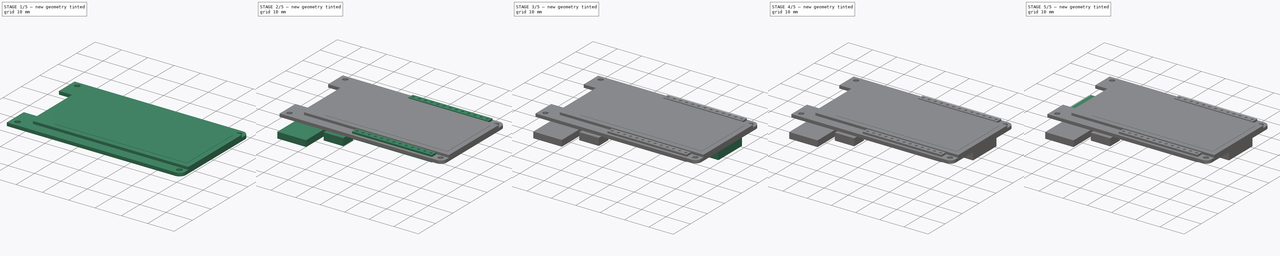
[diagram: build sequence overview — one tinted view per stage of 5, left to right]
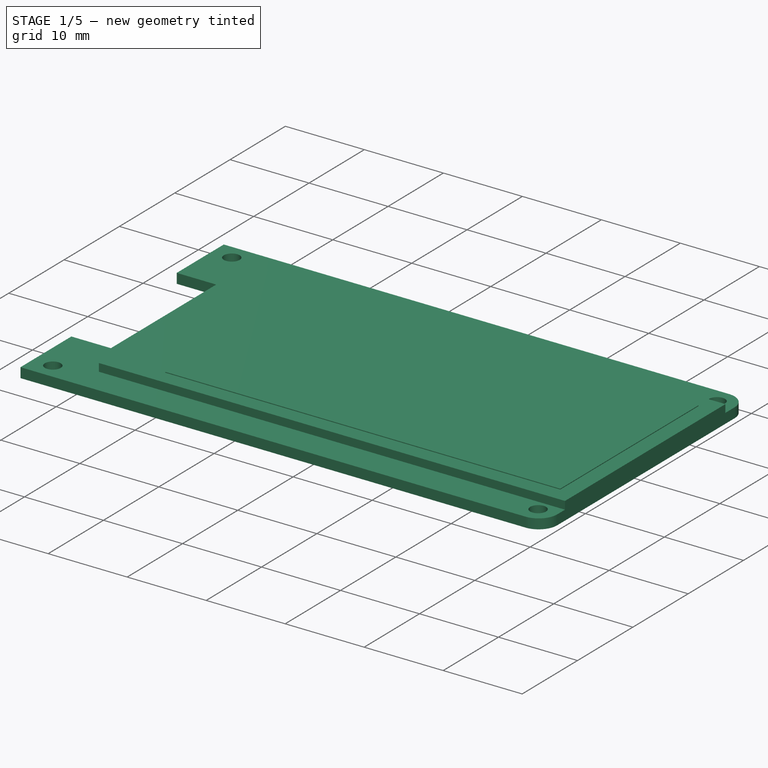
[diagram: stage 1 of 5 — iso view after this stage's code; geometry added in this stage tinted green]
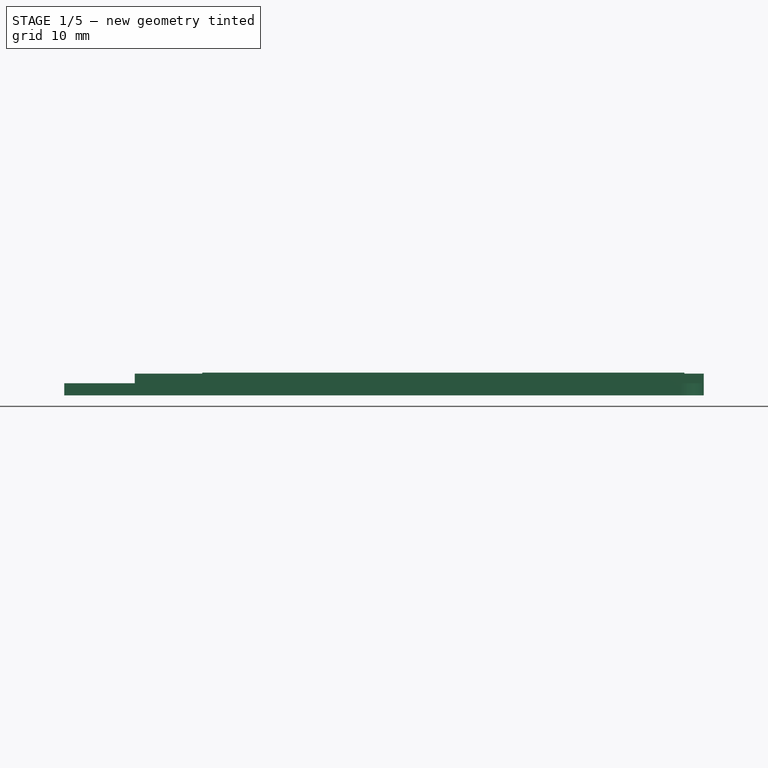
[diagram: stage 1 of 5 — front view after this stage's code; geometry added in this stage tinted green]
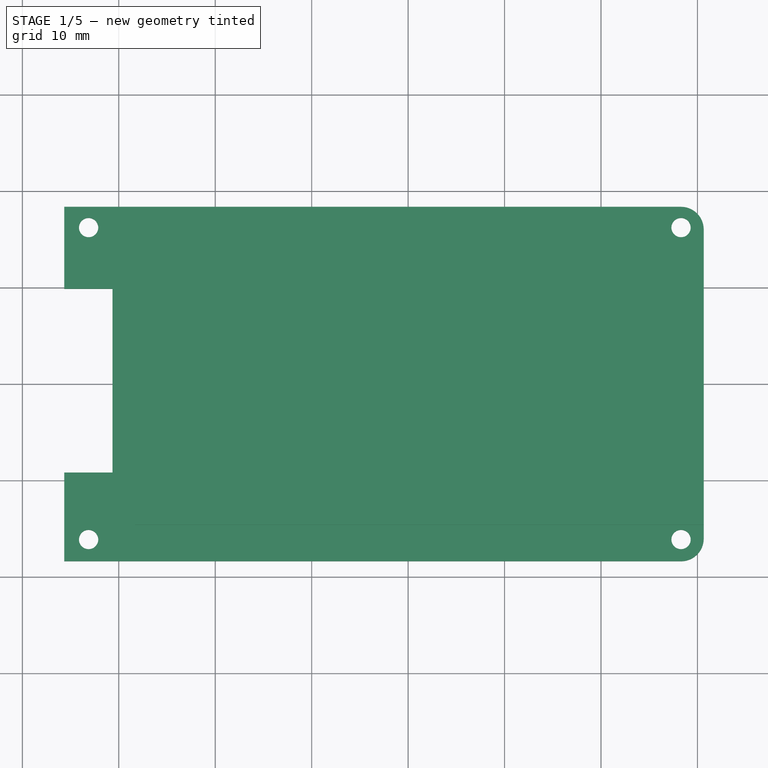
[diagram: stage 1 of 5 — top view after this stage's code; geometry added in this stage tinted green]
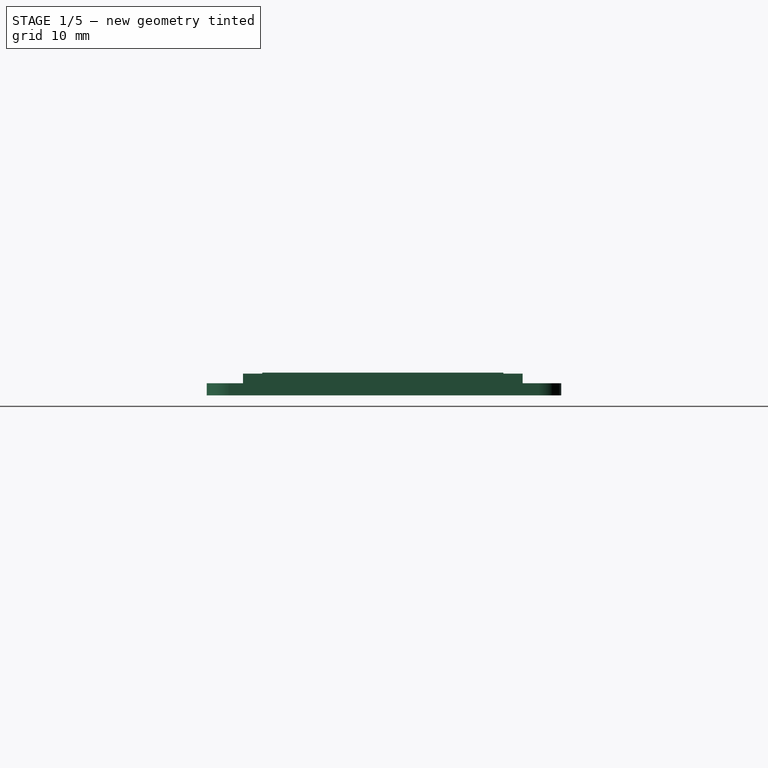
[diagram: stage 1 of 5 — right view after this stage's code; geometry added in this stage tinted green]
FCSTD DOCUMENT  (FreeCAD 0.21R33771 (Git))
Label: Mainboard
License: Creative Commons Attribution-NonCommercial 4.0
LicenseURL: https://creativecommons.org/licenses/by-nc/4.0/
objects: Sketcher::SketchObject×15, PartDesign::Pad×14, PartDesign::Pocket×1, PartDesign::Body×1
note: 46 computed .brp shape members not serialized (recipe doc carries the construction recipe); baked Part::Feature solids carry a one-line shape summary decoded from their .brp

FEATURE [Sketcher::SketchObject] Sketch
  FullyConstrained = true
  MapMode = 5
  Support = -> [XY_Plane]
  sketch-geometry (18):
    g0: LineSegment StartX=-35.65 StartY=18.375 StartZ=0 EndX=28.3 EndY=18.375 EndZ=0
    g1: LineSegment StartX=30.65 StartY=16.025 StartZ=0 EndX=30.65 EndY=-16.025 EndZ=0
    g2: LineSegment StartX=28.3 StartY=-18.375 StartZ=0 EndX=-35.65 EndY=-18.375 EndZ=0
    g3: LineSegment StartX=-35.65 StartY=-18.375 StartZ=0 EndX=-35.65 EndY=-9.175 EndZ=0
    g4: LineSegment StartX=-35.65 StartY=9.875 StartZ=0 EndX=-30.65 EndY=9.875 EndZ=0
    g5: LineSegment StartX=-30.65 StartY=9.875 StartZ=0 EndX=-30.65 EndY=-9.175 EndZ=0
    g6: LineSegment StartX=-30.65 StartY=-9.175 StartZ=0 EndX=-35.65 EndY=-9.175 EndZ=0
    g7: LineSegment StartX=-35.65 StartY=9.875 StartZ=0 EndX=-35.65 EndY=18.375 EndZ=0
    g8: Circle CenterX=-33.13 CenterY=16.225 CenterZ=0 NormalX=0 NormalY=0 NormalZ=1 AngleXU=0 Radius=1
    g9: Circle CenterX=-33.13 CenterY=-16.125 CenterZ=0 NormalX=0 NormalY=0 NormalZ=1 AngleXU=0 Radius=1
    g10: Circle CenterX=28.3 CenterY=16.225 CenterZ=0 NormalX=0 NormalY=0 NormalZ=1 AngleXU=0 Radius=1
    g11: Circle CenterX=28.3 CenterY=-16.125 CenterZ=0 NormalX=0 NormalY=0 NormalZ=1 AngleXU=0 Radius=1
    g12: ArcOfCircle CenterX=28.3 CenterY=16.025 CenterZ=0 NormalX=0 NormalY=0 NormalZ=1 AngleXU=0 Radius=2.35 StartAngle=-9e-16 EndAngle=1.5708
    g13: ArcOfCircle CenterX=28.3 CenterY=-16.025 CenterZ=0 NormalX=0 NormalY=0 NormalZ=1 AngleXU=0 Radius=2.35 StartAngle=4.71239 EndAngle=6.28319
    g14: GeomPoint X=0 Y=18.375 Z=0
    g15: GeomPoint X=-30.65 Y=0 Z=0
    g16: GeomPoint X=30.65 Y=0 Z=0
    g17: GeomPoint X=0 Y=-18.375 Z=0
  constraints (46):
    c: Coincident(g2,g3)
    c: Coincident(g7,g0)
    c: Horizontal(g0)
    c: Horizontal(g2)
    c: Vertical(g1)
    c: Vertical(g3)
    c: Coincident(g4,g5)
    c: Coincident(g5,g6)
    c: Horizontal(g4)
    c: Horizontal(g6)
    c: Vertical(g5)
    c: Vertical(g4,g0)
    c: DistanceY(g4,g0) = 8.5
    c: DistanceY(g2,g6) = 9.2
    c: DistanceX(g4,g4) = 5
    c: Coincident(g4,g7)
    c: Coincident(g3,g6)
    c: Equal(g4,g6)
    c: Diameter(g10) = 2
    c: Equal(g10,g11)
    c: Equal(g11,g9)
    c: Equal(g9,g8)
    c: DistanceY(g8,g0) = 2.15
    c: DistanceY(g2,g9) = 2.25
    c: Horizontal(g8,g10)
    c: Horizontal(g9,g11)
    c: Vertical(g10,g11)
    c: DistanceX(g0,g8) = 2.52
    c: Vertical(g8,g9)
    c: Tangent(g0,g12) = 1.5708
    c: Tangent(g1,g12) = 1.5708
    c: Tangent(g2,g13) = 1.5708
    c: Tangent(g1,g13) = 1.5708
    c: Equal(g12,g13)
    c: Radius(g12) = 2.35
    c: DistanceX(g0,g1) = 66.3
    c: DistanceY(g2,g0) = 36.75
    c: DistanceX(g10,g1) = 2.35
    c: PointOnObject(g14,g0)
    c: Vertical(g-1,g14)
    c: PointOnObject(g15,g5)
    c: PointOnObject(g16,g1)
    c: PointOnObject(g17,g2)
    c: Symmetric(g17,g14,g-1)
    c: Horizontal(g15,g-1)
    c: Symmetric(g15,g16,g-1)
FEATURE [PartDesign::Pad] Pad  label="PCB"
  Direction = (0,0,1)
  Length = 1.25
  Length2 = 10
  Profile = -> Sketch
  ReferenceAxis = -> Sketch [N_Axis]
  Type = 0
FEATURE [Sketcher::SketchObject] Sketch001
  ExternalGeometry = -> [Pad]
  FullyConstrained = true
  MapMode = 5
  Placement = pos=(0,0,1.25) rot=(0,0,1;0rad)
  Support = -> [Pad]
  sketch-geometry (4):
    g0: LineSegment StartX=-28.35 StartY=14.375 StartZ=0 EndX=30.65 EndY=14.375 EndZ=0
    g1: LineSegment StartX=30.65 StartY=14.375 StartZ=0 EndX=30.65 EndY=-14.625 EndZ=0
    g2: LineSegment StartX=30.65 StartY=-14.625 StartZ=0 EndX=-28.35 EndY=-14.625 EndZ=0
    g3: LineSegment StartX=-28.35 StartY=-14.625 StartZ=0 EndX=-28.35 EndY=14.375 EndZ=0
  constraints (12):
    c: Coincident(g0,g1)
    c: Coincident(g1,g2)
    c: Coincident(g2,g3)
    c: Coincident(g3,g0)
    c: Horizontal(g0)
    c: Horizontal(g2)
    c: Vertical(g1)
    c: Vertical(g3)
    c: Vertical(g0,g-3)
    c: DistanceX(g0,g0) = 59
    c: DistanceY(g1,g1) = 29
    c: DistanceY(g0,g-4) = 4
FEATURE [PartDesign::Pad] Pad001  label="Display"
  BaseFeature = -> Pad
  Direction = (0,0,1)
  Length = 1
  Length2 = 10
  Profile = -> Sketch001
  ReferenceAxis = -> Sketch001 [N_Axis]
  Type = 0
FEATURE [Sketcher::SketchObject] Sketch002
  ExternalGeometry = -> [Pad001]
  FullyConstrained = true
  MapMode = 5
  Placement = pos=(0,0,2.25) rot=(0,0,1;0rad)
  Support = -> [Pad001]
  sketch-geometry (4):
    g0: LineSegment StartX=-21.35 StartY=12.375 StartZ=0 EndX=28.65 EndY=12.375 EndZ=0
    g1: LineSegment StartX=28.65 StartY=12.375 StartZ=0 EndX=28.65 EndY=-12.625 EndZ=0
    g2: LineSegment StartX=28.65 StartY=-12.625 StartZ=0 EndX=-21.35 EndY=-12.625 EndZ=0
    g3: LineSegment StartX=-21.35 StartY=-12.625 StartZ=0 EndX=-21.35 EndY=12.375 EndZ=0
  constraints (12):
    c: Coincident(g0,g1)
    c: Coincident(g1,g2)
    c: Coincident(g2,g3)
    c: Coincident(g3,g0)
    c: Horizontal(g0)
    c: Horizontal(g2)
    c: Vertical(g1)
    c: Vertical(g3)
    c: DistanceY(g0,g-3) = 2
    c: DistanceY(g2,g0) = 25
    c: DistanceX(g1,g-4) = 2
    c: DistanceX(g2,g2) = 50
FEATURE [PartDesign::Pad] Pad002  label="Screen"
  BaseFeature = -> Pad001
  Direction = (0,0,1)
  Length = 0.1
  Length2 = 10
  Profile = -> Sketch002
  ReferenceAxis = -> Sketch002 [N_Axis]
  Type = 0
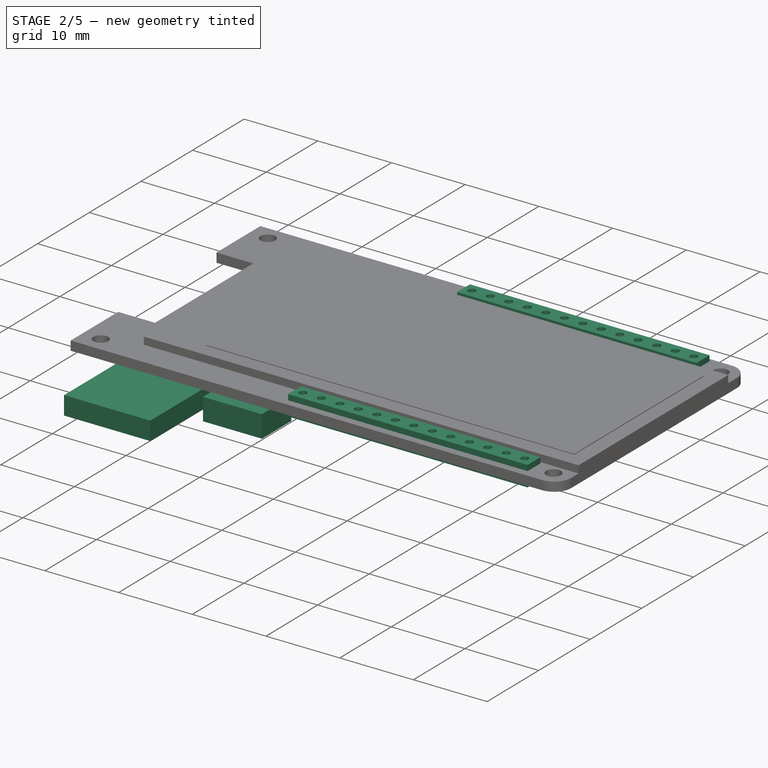
[diagram: stage 2 of 5 — iso view after this stage's code; geometry added in this stage tinted green]
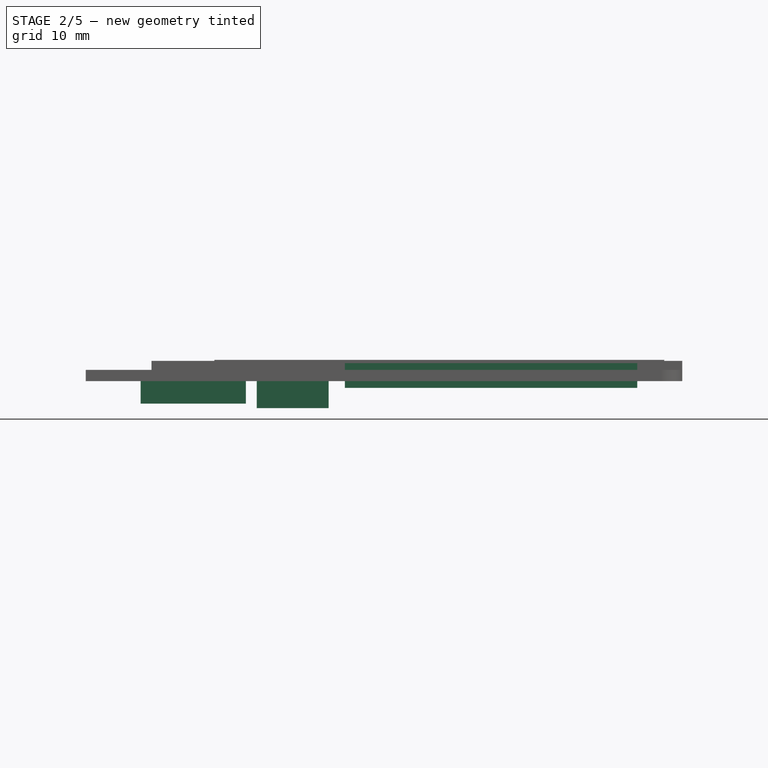
[diagram: stage 2 of 5 — front view after this stage's code; geometry added in this stage tinted green]
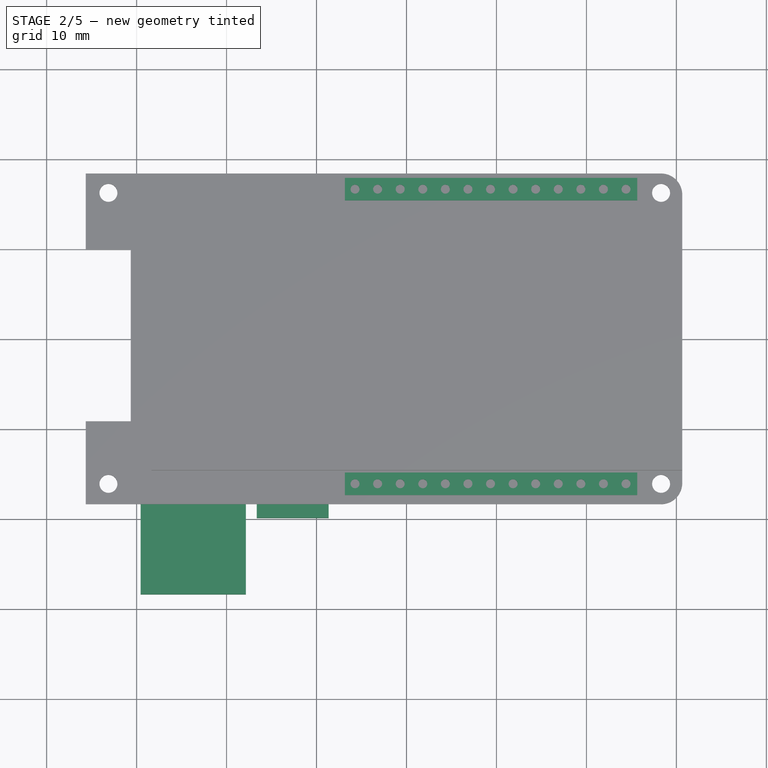
[diagram: stage 2 of 5 — top view after this stage's code; geometry added in this stage tinted green]
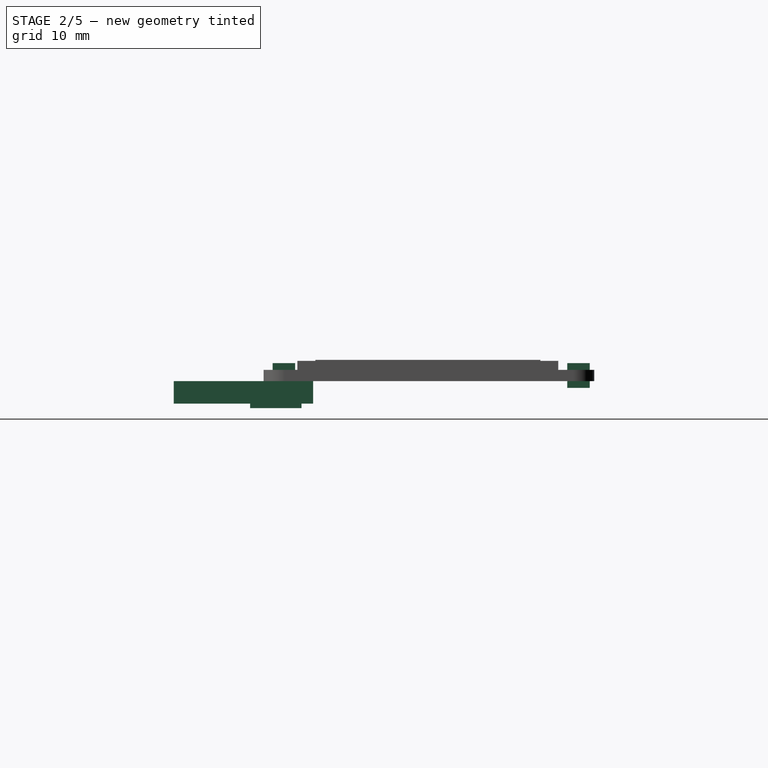
[diagram: stage 2 of 5 — right view after this stage's code; geometry added in this stage tinted green]
FEATURE [Sketcher::SketchObject] Sketch003
  ExternalGeometry = -> [Pad002]
  FullyConstrained = true
  MapMode = 5
  Placement = pos=(0,0,1.25) rot=(0,0,1;0rad)
  Support = -> [Pad002]
  sketch-geometry (60):
    g0: LineSegment StartX=25.65 StartY=17.875 StartZ=0 EndX=-6.85 EndY=17.875 EndZ=0
    g1: LineSegment StartX=-6.85 StartY=17.875 StartZ=0 EndX=-6.85 EndY=15.375 EndZ=0
    g2: LineSegment StartX=-6.85 StartY=15.375 StartZ=0 EndX=25.65 EndY=15.375 EndZ=0
    g3: LineSegment StartX=25.65 StartY=15.375 StartZ=0 EndX=25.65 EndY=17.875 EndZ=0
    g4: LineSegment StartX=25.65 StartY=-14.875 StartZ=0 EndX=-6.85 EndY=-14.875 EndZ=0
    g5: LineSegment StartX=-6.85 StartY=-14.875 StartZ=0 EndX=-6.85 EndY=-17.375 EndZ=0
    g6: LineSegment StartX=-6.85 StartY=-17.375 StartZ=0 EndX=25.65 EndY=-17.375 EndZ=0
    g7: LineSegment StartX=25.65 StartY=-17.375 StartZ=0 EndX=25.65 EndY=-14.875 EndZ=0
    g8: Circle CenterX=24.4 CenterY=16.625 CenterZ=0 NormalX=0 NormalY=0 NormalZ=1 AngleXU=0 Radius=0.5
    g9: GeomPoint X=25.65 Y=16.625 Z=0
    g10: Circle CenterX=21.89 CenterY=16.625 CenterZ=0 NormalX=0 NormalY=0 NormalZ=1 AngleXU=0 Radius=0.5
    g11: LineSegment StartX=24.4 StartY=16.625 StartZ=0 EndX=21.89 EndY=16.625 EndZ=0
    g12: Circle CenterX=19.38 CenterY=16.625 CenterZ=0 NormalX=0 NormalY=0 NormalZ=1 AngleXU=0 Radius=0.5
    g13: LineSegment StartX=21.89 StartY=16.625 StartZ=0 EndX=19.38 EndY=16.625 EndZ=0
    g14: Circle CenterX=16.87 CenterY=16.625 CenterZ=0 NormalX=0 NormalY=0 NormalZ=1 AngleXU=0 Radius=0.5
    g15: LineSegment StartX=19.38 StartY=16.625 StartZ=0 EndX=16.87 EndY=16.625 EndZ=0
    g16: Circle CenterX=14.36 CenterY=16.625 CenterZ=0 NormalX=0 NormalY=0 NormalZ=1 AngleXU=0 Radius=0.5
    g17: LineSegment StartX=16.87 StartY=16.625 StartZ=0 EndX=14.36 EndY=16.625 EndZ=0
    g18: Circle CenterX=11.85 CenterY=16.625 CenterZ=0 NormalX=0 NormalY=0 NormalZ=1 AngleXU=0 Radius=0.5
    g19: LineSegment StartX=14.36 StartY=16.625 StartZ=0 EndX=11.85 EndY=16.625 EndZ=0
    g20: Circle CenterX=9.34 CenterY=16.625 CenterZ=0 NormalX=0 NormalY=0 NormalZ=1 AngleXU=0 Radius=0.5
    g21: LineSegment StartX=11.85 StartY=16.625 StartZ=0 EndX=9.34 EndY=16.625 EndZ=0
    g22: Circle CenterX=6.83 CenterY=16.625 CenterZ=0 NormalX=0 NormalY=0 NormalZ=1 AngleXU=0 Radius=0.5
    g23: LineSegment StartX=9.34 StartY=16.625 StartZ=0 EndX=6.83 EndY=16.625 EndZ=0
    g24: Circle CenterX=4.32 CenterY=16.625 CenterZ=0 NormalX=0 NormalY=0 NormalZ=1 AngleXU=0 Radius=0.5
    g25: LineSegment StartX=6.83 StartY=16.625 StartZ=0 EndX=4.32 EndY=16.625 EndZ=0
    g26: Circle CenterX=1.81 CenterY=16.625 CenterZ=0 NormalX=0 NormalY=0 NormalZ=1 AngleXU=0 Radius=0.5
    g27: LineSegment StartX=4.32 StartY=16.625 StartZ=0 EndX=1.81 EndY=16.625 EndZ=0
    g28: Circle CenterX=-0.7 CenterY=16.625 CenterZ=0 NormalX=0 NormalY=0 NormalZ=1 AngleXU=0 Radius=0.5
    g29: LineSegment StartX=1.81 StartY=16.625 StartZ=0 EndX=-0.7 EndY=16.625 EndZ=0
    g30: Circle CenterX=-3.21 CenterY=16.625 CenterZ=0 NormalX=0 NormalY=0 NormalZ=1 AngleXU=0 Radius=0.5
    g31: LineSegment StartX=-0.7 StartY=16.625 StartZ=0 EndX=-3.21 EndY=16.625 EndZ=0
    g32: Circle CenterX=-5.72 CenterY=16.625 CenterZ=0 NormalX=0 NormalY=0 NormalZ=1 AngleXU=0 Radius=0.5
    g33: LineSegment StartX=-3.21 StartY=16.625 StartZ=0 EndX=-5.72 EndY=16.625 EndZ=0
    g34: Circle CenterX=24.4 CenterY=-16.125 CenterZ=0 NormalX=0 NormalY=0 NormalZ=1 AngleXU=0 Radius=0.5
    g35: Circle CenterX=21.89 CenterY=-16.125 CenterZ=0 NormalX=0 NormalY=0 NormalZ=1 AngleXU=0 Radius=0.5
    g36: LineSegment StartX=24.4 StartY=-16.125 StartZ=0 EndX=21.89 EndY=-16.125 EndZ=0
    g37: Circle CenterX=19.38 CenterY=-16.125 CenterZ=0 NormalX=0 NormalY=0 NormalZ=1 AngleXU=0 Radius=0.5
    g38: LineSegment StartX=21.89 StartY=-16.125 StartZ=0 EndX=19.38 EndY=-16.125 EndZ=0
    g39: Circle CenterX=16.87 CenterY=-16.125 CenterZ=0 NormalX=0 NormalY=0 NormalZ=1 AngleXU=0 Radius=0.5
    g40: LineSegment StartX=19.38 StartY=-16.125 StartZ=0 EndX=16.87 EndY=-16.125 EndZ=0
    g41: Circle CenterX=14.36 CenterY=-16.125 CenterZ=0 NormalX=0 NormalY=0 NormalZ=1 AngleXU=0 Radius=0.5
    g42: LineSegment StartX=16.87 StartY=-16.125 StartZ=0 EndX=14.36 EndY=-16.125 EndZ=0
    g43: Circle CenterX=11.85 CenterY=-16.125 CenterZ=0 NormalX=0 NormalY=0 NormalZ=1 AngleXU=0 Radius=0.5
    g44: LineSegment StartX=14.36 StartY=-16.125 StartZ=0 EndX=11.85 EndY=-16.125 EndZ=0
    g45: Circle CenterX=9.34 CenterY=-16.125 CenterZ=0 NormalX=0 NormalY=0 NormalZ=1 AngleXU=0 Radius=0.5
    g46: LineSegment StartX=11.85 StartY=-16.125 StartZ=0 EndX=9.34 EndY=-16.125 EndZ=0
    g47: Circle CenterX=6.83 CenterY=-16.125 CenterZ=0 NormalX=0 NormalY=0 NormalZ=1 AngleXU=0 Radius=0.5
    g48: LineSegment StartX=9.34 StartY=-16.125 StartZ=0 EndX=6.83 EndY=-16.125 EndZ=0
    g49: Circle CenterX=4.32 CenterY=-16.125 CenterZ=0 NormalX=0 NormalY=0 NormalZ=1 AngleXU=0 Radius=0.5
    g50: LineSegment StartX=6.83 StartY=-16.125 StartZ=0 EndX=4.32 EndY=-16.125 EndZ=0
    g51: Circle CenterX=1.81 CenterY=-16.125 CenterZ=0 NormalX=0 NormalY=0 NormalZ=1 AngleXU=0 Radius=0.5
    g52: LineSegment StartX=4.32 StartY=-16.125 StartZ=0 EndX=1.81 EndY=-16.125 EndZ=0
    g53: Circle CenterX=-0.7 CenterY=-16.125 CenterZ=0 NormalX=0 NormalY=0 NormalZ=1 AngleXU=0 Radius=0.5
    g54: LineSegment StartX=1.81 StartY=-16.125 StartZ=0 EndX=-0.7 EndY=-16.125 EndZ=0
    g55: Circle CenterX=-3.21 CenterY=-16.125 CenterZ=0 NormalX=0 NormalY=0 NormalZ=1 AngleXU=0 Radius=0.5
    g56: LineSegment StartX=-0.7 StartY=-16.125 StartZ=0 EndX=-3.21 EndY=-16.125 EndZ=0
    g57: Circle CenterX=-5.72 CenterY=-16.125 CenterZ=0 NormalX=0 NormalY=0 NormalZ=1 AngleXU=0 Radius=0.5
    g58: LineSegment StartX=-3.21 StartY=-16.125 StartZ=0 EndX=-5.72 EndY=-16.125 EndZ=0
    g59: GeomPoint X=25.65 Y=-16.125 Z=0
  constraints (152):
    c: Coincident(g0,g1)
    c: Coincident(g1,g2)
    c: Coincident(g2,g3)
    c: Coincident(g3,g0)
    c: Horizontal(g0)
    c: Horizontal(g2)
    c: Vertical(g1)
    c: Vertical(g3)
    c: Coincident(g4,g5)
    c: Coincident(g5,g6)
    c: Coincident(g6,g7)
    c: Coincident(g7,g4)
    c: Horizontal(g4)
    c: Horizontal(g6)
    c: Vertical(g5)
    c: Vertical(g7)
    c: Vertical(g2,g4)
    c: Vertical(g4,g1)
    c: Equal(g3,g7)
    c: DistanceY(g3,g3) = 2.5
    c: DistanceY(g0,g-3) = 0.5
    c: DistanceY(g-6,g6) = 1
    c: DistanceX(g6,g-5) = 5
    c: DistanceX(g5,g6) = 32.5
    c: DistanceX(g8,g0) = 1.25
    c: Diameter(g8) = 1
    c: Symmetric(g0,g2,g9)
    c: Horizontal(g9,g8)
    c: Diameter(g10) = 1
    c: Coincident(g8,g11)
    c: Coincident(g10,g11)
    c: Distance(g11) = 2.51
    c: Diameter(g12) = 1
    c: Coincident(g10,g13)
    c: Coincident(g12,g13)
    c: Equal(g11,g13)
    c: Parallel(g13,g11)
    c: Diameter(g14) = 1
    c: Coincident(g12,g15)
    c: Coincident(g14,g15)
    c: Equal(g11,g15)
    c: Parallel(g15,g11)
    c: Diameter(g16) = 1
    c: Coincident(g14,g17)
    c: Coincident(g16,g17)
    c: Equal(g11,g17)
    c: Parallel(g17,g11)
    c: Diameter(g18) = 1
    c: Coincident(g16,g19)
    c: Coincident(g18,g19)
    c: Equal(g11,g19)
    c: Parallel(g19,g11)
    c: Diameter(g20) = 1
    c: Coincident(g18,g21)
    c: Coincident(g20,g21)
    c: Equal(g11,g21)
    c: Parallel(g21,g11)
    c: Diameter(g22) = 1
    c: Coincident(g20,g23)
    c: Coincident(g22,g23)
    c: Equal(g11,g23)
    c: Parallel(g23,g11)
    c: Diameter(g24) = 1
    c: Coincident(g22,g25)
    c: Coincident(g24,g25)
    c: Equal(g11,g25)
    c: Parallel(g25,g11)
    c: Diameter(g26) = 1
    c: Coincident(g24,g27)
    c: Coincident(g26,g27)
    c: Equal(g11,g27)
    c: Parallel(g27,g11)
    c: Diameter(g28) = 1
    c: Coincident(g26,g29)
    c: Coincident(g28,g29)
    c: Equal(g11,g29)
    c: Parallel(g29,g11)
    c: Diameter(g30) = 1
    c: Coincident(g28,g31)
    c: Coincident(g30,g31)
    c: Equal(g11,g31)
    c: Parallel(g31,g11)
    c: Diameter(g32) = 1
    c: Coincident(g30,g33)
    c: Coincident(g32,g33)
    c: Equal(g11,g33)
    c: Parallel(g33,g11)
    c: Diameter(g34) = 1
    c: Diameter(g35) = 1
    c: Coincident(g34,g36)
    c: Coincident(g35,g36)
    c: Equal(g11,g36)
    c: Parallel(g36,g11)
    c: Diameter(g37) = 1
    c: Coincident(g35,g38)
    c: Coincident(g37,g38)
    c: Equal(g11,g38)
    c: Parallel(g38,g11)
    c: Diameter(g39) = 1
    c: Coincident(g37,g40)
    c: Coincident(g39,g40)
    c: Equal(g11,g40)
    c: Parallel(g40,g11)
    c: Diameter(g41) = 1
    c: Coincident(g39,g42)
    c: Coincident(g41,g42)
    c: Equal(g11,g42)
    c: Parallel(g42,g11)
    c: Diameter(g43) = 1
    c: Coincident(g41,g44)
    c: Coincident(g43,g44)
    c: Equal(g11,g44)
    c: Parallel(g44,g11)
    c: Diameter(g45) = 1
    c: Coincident(g43,g46)
    c: Coincident(g45,g46)
    c: Equal(g11,g46)
    c: Parallel(g46,g11)
    c: Diameter(g47) = 1
    c: Coincident(g45,g48)
    c: Coincident(g47,g48)
    c: Equal(g11,g48)
    c: Parallel(g48,g11)
    c: Diameter(g49) = 1
    c: Coincident(g47,g50)
    c: Coincident(g49,g50)
    c: Equal(g11,g50)
    c: Parallel(g50,g11)
    c: Diameter(g51) = 1
    c: Coincident(g49,g52)
    c: Coincident(g51,g52)
    c: Equal(g11,g52)
    c: Parallel(g52,g11)
    c: Diameter(g53) = 1
    c: Coincident(g51,g54)
    c: Coincident(g53,g54)
    c: Equal(g11,g54)
    c: Parallel(g54,g11)
    c: Diameter(g55) = 1
    c: Coincident(g53,g56)
    c: Coincident(g55,g56)
    c: Equal(g11,g56)
    c: Parallel(g56,g11)
    c: Diameter(g57) = 1
    c: Coincident(g55,g58)
    c: Coincident(g57,g58)
    c: Equal(g11,g58)
    c: Parallel(g58,g11)
    c: Horizontal(g8,g32)
    c: Symmetric(g4,g6,g59)
    c: Horizontal(g34,g59)
    c: Vertical(g34,g8)
FEATURE [PartDesign::Pad] Pad003  label="GPIO"
  BaseFeature = -> Pad002
  Direction = (0,0,1)
  Length = 0.75
  Length2 = 2
  Profile = -> Sketch003
  ReferenceAxis = -> Sketch003 [N_Axis]
  Type = 4
FEATURE [Sketcher::SketchObject] Sketch004
  ExternalGeometry = -> [Pad003]
  FullyConstrained = true
  MapMode = 5
  Placement = pos=(0,0,0) rot=(1,0,0;3.14159rad)
  Support = -> [Pad003]
  sketch-geometry (4):
    g0: LineSegment StartX=-29.55 StartY=28.375 StartZ=0 EndX=-17.85 EndY=28.375 EndZ=0
    g1: LineSegment StartX=-17.85 StartY=28.375 StartZ=0 EndX=-17.85 EndY=12.875 EndZ=0
    g2: LineSegment StartX=-17.85 StartY=12.875 StartZ=0 EndX=-29.55 EndY=12.875 EndZ=0
    g3: LineSegment StartX=-29.55 StartY=12.875 StartZ=0 EndX=-29.55 EndY=28.375 EndZ=0
  constraints (12):
    c: Coincident(g0,g1)
    c: Coincident(g1,g2)
    c: Coincident(g2,g3)
    c: Coincident(g3,g0)
    c: Horizontal(g0)
    c: Horizontal(g2)
    c: Vertical(g1)
    c: Vertical(g3)
    c: DistanceX(g-3,g0) = 6.1
    c: DistanceX(g0,g0) = 11.7
    c: DistanceY(g-3,g0) = 10
    c: DistanceY(g2,g-3) = 5.5
FEATURE [PartDesign::Pad] Pad004  label="SDCard"
  BaseFeature = -> Pad003
  Direction = (0,0,-1)
  Length = 2.5
  Length2 = 10
  Profile = -> Sketch004
  ReferenceAxis = -> Sketch004 [N_Axis]
  Type = 0
FEATURE [Sketcher::SketchObject] Sketch005
  ExternalGeometry = -> [Pad004]
  FullyConstrained = true
  MapMode = 5
  Placement = pos=(0,0,0) rot=(1,0,0;3.14159rad)
  Support = -> [Pad004]
  sketch-geometry (4):
    g0: LineSegment StartX=-16.65 StartY=19.875 StartZ=0 EndX=-8.65 EndY=19.875 EndZ=0
    g1: LineSegment StartX=-8.65 StartY=19.875 StartZ=0 EndX=-8.65 EndY=14.175 EndZ=0
    g2: LineSegment StartX=-8.65 StartY=14.175 StartZ=0 EndX=-16.65 EndY=14.175 EndZ=0
    g3: LineSegment StartX=-16.65 StartY=14.175 StartZ=0 EndX=-16.65 EndY=19.875 EndZ=0
  constraints (12):
    c: Coincident(g0,g1)
    c: Coincident(g1,g2)
    c: Coincident(g2,g3)
    c: Coincident(g3,g0)
    c: Horizontal(g0)
    c: Horizontal(g2)
    c: Vertical(g1)
    c: Vertical(g3)
    c: DistanceX(g-3,g0) = 19
    c: DistanceX(g0,g0) = 8
    c: DistanceY(g-3,g0) = 1.5
    c: DistanceY(g2,g0) = 5.7
FEATURE [PartDesign::Pad] Pad005  label="MicroUSB"
  BaseFeature = -> Pad004
  Direction = (0,0,-1)
  Length = 3
  Length2 = 10
  Profile = -> Sketch005
  ReferenceAxis = -> Sketch005 [N_Axis]
  Type = 0
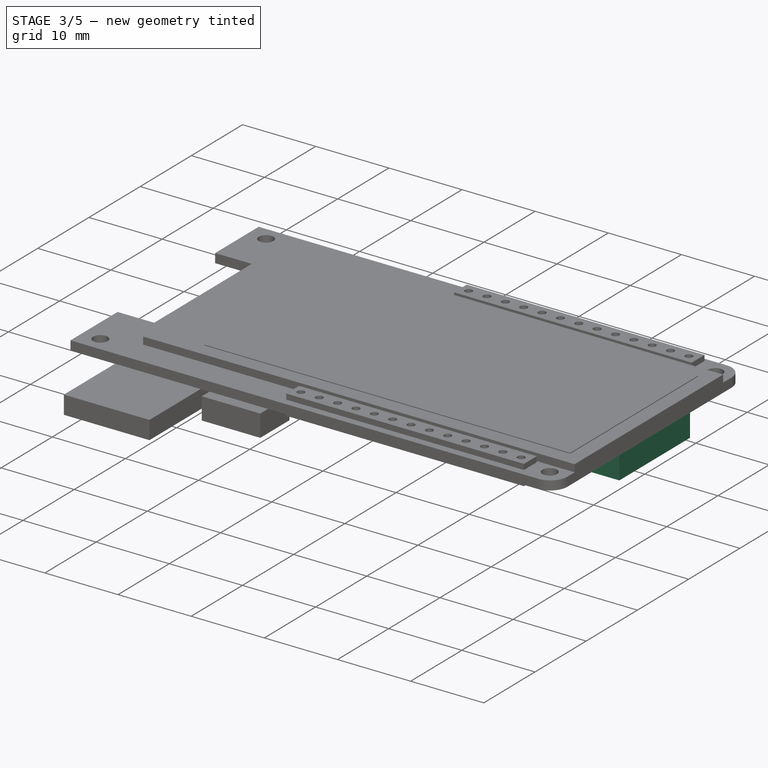
[diagram: stage 3 of 5 — iso view after this stage's code; geometry added in this stage tinted green]
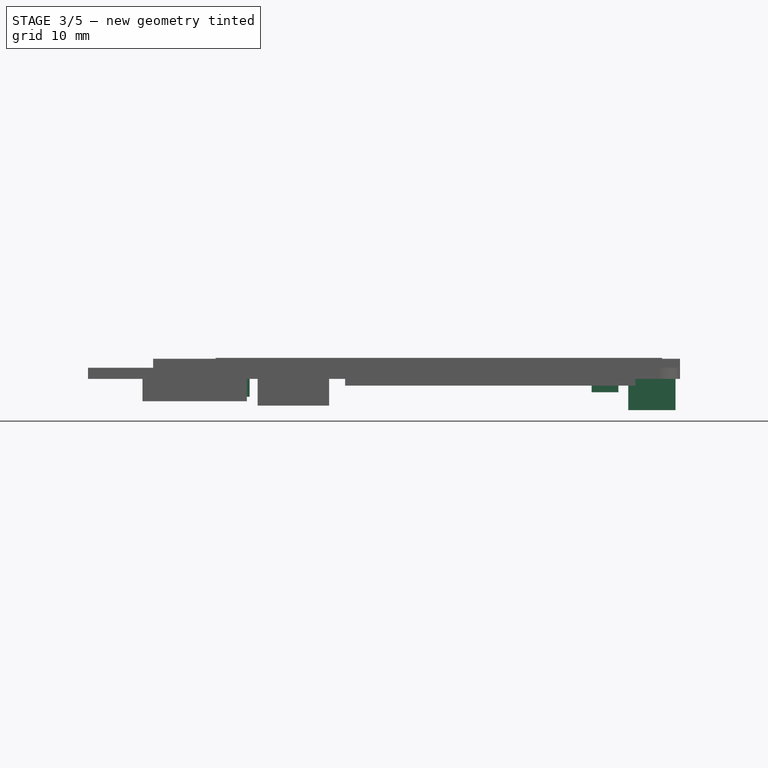
[diagram: stage 3 of 5 — front view after this stage's code; geometry added in this stage tinted green]
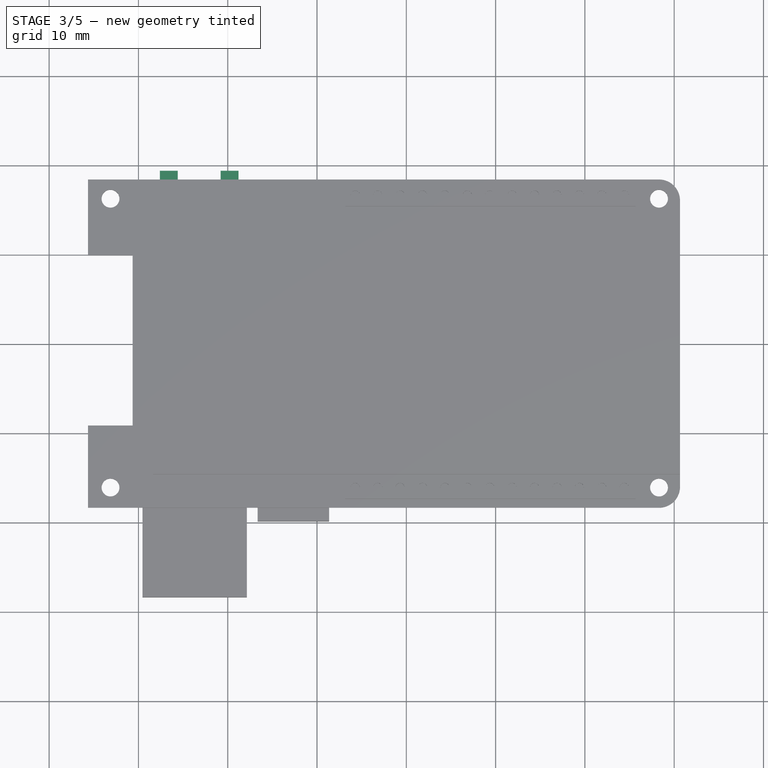
[diagram: stage 3 of 5 — top view after this stage's code; geometry added in this stage tinted green]
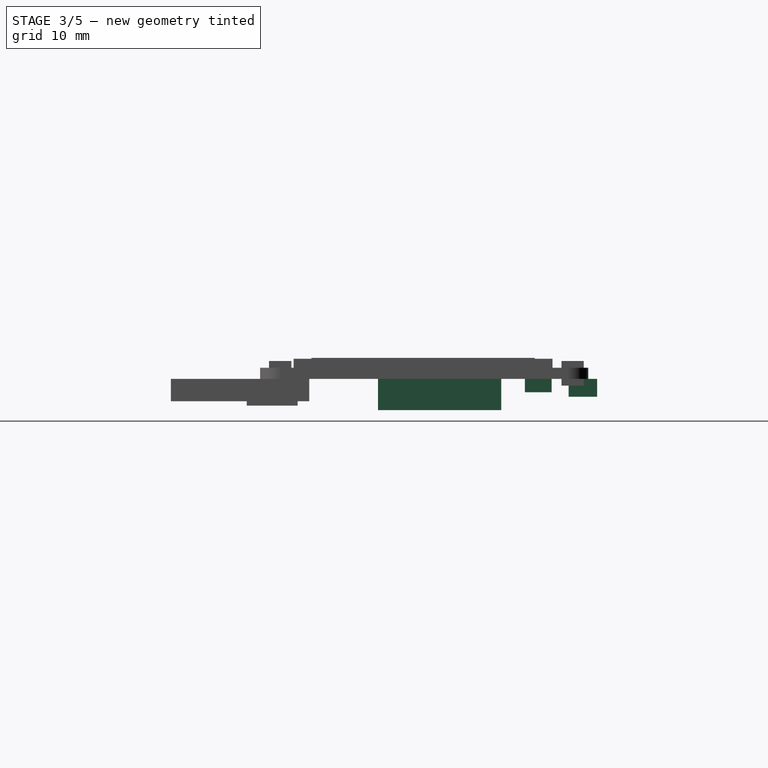
[diagram: stage 3 of 5 — right view after this stage's code; geometry added in this stage tinted green]
FEATURE [Sketcher::SketchObject] Sketch006
  ExternalGeometry = -> [Pad005]
  FullyConstrained = true
  MapMode = 5
  Placement = pos=(0,0,0) rot=(1,0,0;3.14159rad)
  Support = -> [Pad005]
  sketch-geometry (4):
    g0: LineSegment StartX=24.85 StartY=5.175 StartZ=0 EndX=30.15 EndY=5.175 EndZ=0
    g1: LineSegment StartX=30.15 StartY=5.175 StartZ=0 EndX=30.15 EndY=-8.625 EndZ=0
    g2: LineSegment StartX=30.15 StartY=-8.625 StartZ=0 EndX=24.85 EndY=-8.625 EndZ=0
    g3: LineSegment StartX=24.85 StartY=-8.625 StartZ=0 EndX=24.85 EndY=5.175 EndZ=0
  constraints (12):
    c: Coincident(g0,g1)
    c: Coincident(g1,g2)
    c: Coincident(g2,g3)
    c: Coincident(g3,g0)
    c: Horizontal(g0)
    c: Horizontal(g2)
    c: Vertical(g1)
    c: Vertical(g3)
    c: DistanceY(g1,g0) = 13.8
    c: DistanceX(g2,g2) = 5.3
    c: DistanceX(g0,g-4) = 0.5
    c: DistanceY(g0,g-3) = 13.2
FEATURE [PartDesign::Pad] Pad006  label="Antenna"
  BaseFeature = -> Pad005
  Direction = (0,0,-1)
  Length = 3.5
  Length2 = 10
  Profile = -> Sketch006
  ReferenceAxis = -> Sketch006 [N_Axis]
  Type = 0
FEATURE [Sketcher::SketchObject] Sketch007
  ExternalGeometry = -> [Pad006]
  FullyConstrained = true
  MapMode = 5
  Placement = pos=(0,0,0) rot=(1,0,0;3.14159rad)
  Support = -> [Pad006]
  sketch-geometry (5):
    g0: LineSegment StartX=20.75 StartY=-11.275 StartZ=0 EndX=23.75 EndY=-11.275 EndZ=0
    g1: LineSegment StartX=23.75 StartY=-11.275 StartZ=0 EndX=23.75 EndY=-14.275 EndZ=0
    g2: LineSegment StartX=23.75 StartY=-14.275 StartZ=0 EndX=20.75 EndY=-14.275 EndZ=0
    g3: LineSegment StartX=20.75 StartY=-14.275 StartZ=0 EndX=20.75 EndY=-11.275 EndZ=0
    g4: Circle CenterX=22.25 CenterY=-12.775 CenterZ=0 NormalX=0 NormalY=0 NormalZ=1 AngleXU=0 Radius=1
  constraints (14):
    c: Coincident(g0,g1)
    c: Coincident(g1,g2)
    c: Coincident(g2,g3)
    c: Coincident(g3,g0)
    c: Horizontal(g0)
    c: Horizontal(g2)
    c: Vertical(g1)
    c: Vertical(g3)
    c: DistanceY(g-3,g1) = 4.1
    c: DistanceX(g1,g-4) = 6.9
    c: DistanceX(g0,g0) = 3
    c: DistanceY(g2,g0) = 3
    c: Symmetric(g0,g1,g4)
    c: Diameter(g4) = 2
FEATURE [PartDesign::Pad] Pad007  label="AntennaExt"
  BaseFeature = -> Pad006
  Direction = (0,0,-1)
  Length = 1.5
  Length2 = 10
  Profile = -> Sketch007
  ReferenceAxis = -> Sketch007 [N_Axis]
  Type = 0
FEATURE [Sketcher::SketchObject] Sketch008
  ExternalGeometry = -> [Pad007]
  FullyConstrained = true
  MapMode = 5
  Placement = pos=(0,0,0) rot=(1,0,0;3.14159rad)
  Support = -> [Pad007]
  sketch-geometry (16):
    g0: LineSegment StartX=-28.85 StartY=-16.175 StartZ=0 EndX=-24.35 EndY=-16.175 EndZ=0
    g1: LineSegment StartX=-24.35 StartY=-16.175 StartZ=0 EndX=-24.35 EndY=-18.375 EndZ=0
    g2: LineSegment StartX=-24.35 StartY=-18.375 StartZ=0 EndX=-25.6 EndY=-18.375 EndZ=0
    g3: LineSegment StartX=-28.85 StartY=-18.375 StartZ=0 EndX=-28.85 EndY=-16.175 EndZ=0
    g4: LineSegment StartX=-22.05 StartY=-16.175 StartZ=0 EndX=-17.55 EndY=-16.175 EndZ=0
    g5: LineSegment StartX=-17.55 StartY=-16.175 StartZ=0 EndX=-17.55 EndY=-18.375 EndZ=0
    g6: LineSegment StartX=-17.55 StartY=-18.375 StartZ=0 EndX=-18.8 EndY=-18.375 EndZ=0
    g7: LineSegment StartX=-22.05 StartY=-18.375 StartZ=0 EndX=-22.05 EndY=-16.175 EndZ=0
    g8: LineSegment StartX=-25.6 StartY=-18.375 StartZ=0 EndX=-25.6 EndY=-19.375 EndZ=0
    g9: LineSegment StartX=-25.6 StartY=-19.375 StartZ=0 EndX=-27.6 EndY=-19.375 EndZ=0
    g10: LineSegment StartX=-27.6 StartY=-19.375 StartZ=0 EndX=-27.6 EndY=-18.375 EndZ=0
    g11: LineSegment StartX=-18.8 StartY=-18.375 StartZ=0 EndX=-18.8 EndY=-19.375 EndZ=0
    g12: LineSegment StartX=-18.8 StartY=-19.375 StartZ=0 EndX=-20.8 EndY=-19.375 EndZ=0
    g13: LineSegment StartX=-20.8 StartY=-19.375 StartZ=0 EndX=-20.8 EndY=-18.375 EndZ=0
    g14: LineSegment StartX=-27.6 StartY=-18.375 StartZ=0 EndX=-28.85 EndY=-18.375 EndZ=0
    g15: LineSegment StartX=-20.8 StartY=-18.375 StartZ=0 EndX=-22.05 EndY=-18.375 EndZ=0
  constraints (48):
    c: Coincident(g0,g1)
    c: Coincident(g1,g2)
    c: Coincident(g14,g3)
    c: Coincident(g3,g0)
    c: Horizontal(g0)
    c: Horizontal(g2)
    c: Vertical(g1)
    c: Vertical(g3)
    c: Coincident(g4,g5)
    c: Coincident(g5,g6)
    c: Coincident(g15,g7)
    c: Coincident(g7,g4)
    c: Horizontal(g4)
    c: Horizontal(g6)
    c: Vertical(g5)
    c: Vertical(g7)
    c: Equal(g0,g4)
    c: Equal(g3,g7)
    c: Horizontal(g0,g4)
    c: DistanceX(g0,g0) = 4.5
    c: DistanceY(g14,g0) = 2.2
    c: DistanceX(g0,g4) = 2.3
    c: Horizontal(g14,g-3)
    c: DistanceX(g-3,g14) = 6.8
    c: Coincident(g8,g9)
    c: Coincident(g9,g10)
    c: Horizontal(g9)
    c: Vertical(g8)
    c: Vertical(g10)
    c: Coincident(g11,g12)
    c: Coincident(g12,g13)
    c: Horizontal(g12)
    c: Vertical(g11)
    c: Vertical(g13)
    c: DistanceY(g10,g10) = 1
    c: DistanceX(g9,g9) = 2
    c: Equal(g9,g12)
    c: Equal(g10,g13)
    c: Equal(g14,g2)
    c: Equal(g15,g6)
    c: Coincident(g10,g14)
    c: Coincident(g2,g8)
    c: Coincident(g13,g15)
    c: Coincident(g6,g11)
    c: Equal(g10,g8)
    c: Equal(g13,g11)
    c: Parallel(g14,g0)
    c: Parallel(g15,g4)
FEATURE [PartDesign::Pad] Pad008  label="Buttons"
  BaseFeature = -> Pad007
  Direction = (0,0,-1)
  Length = 2
  Length2 = 10
  Profile = -> Sketch008
  ReferenceAxis = -> Sketch008 [N_Axis]
  Type = 0
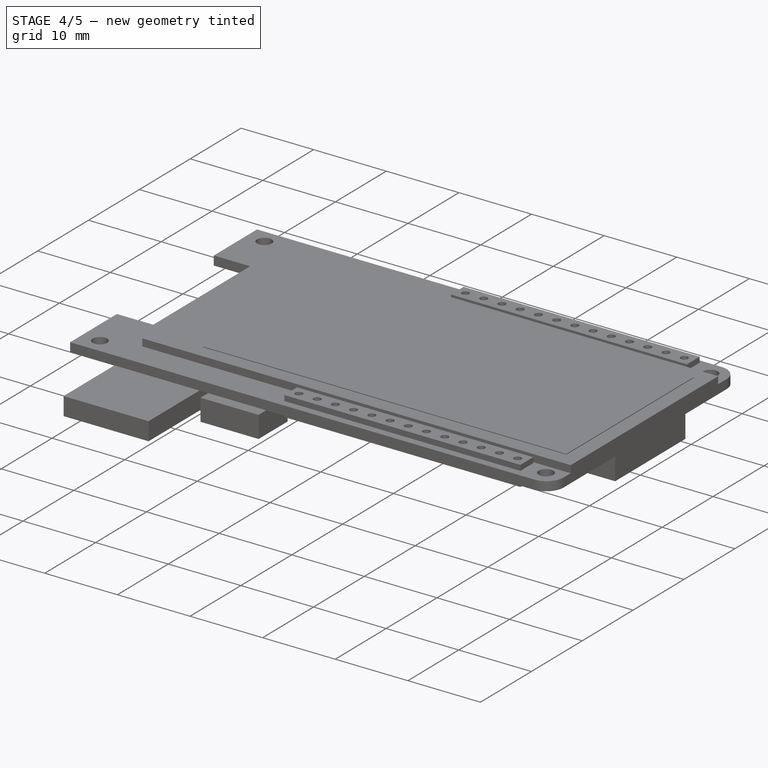
[diagram: stage 4 of 5 — iso view after this stage's code; geometry added in this stage tinted green]
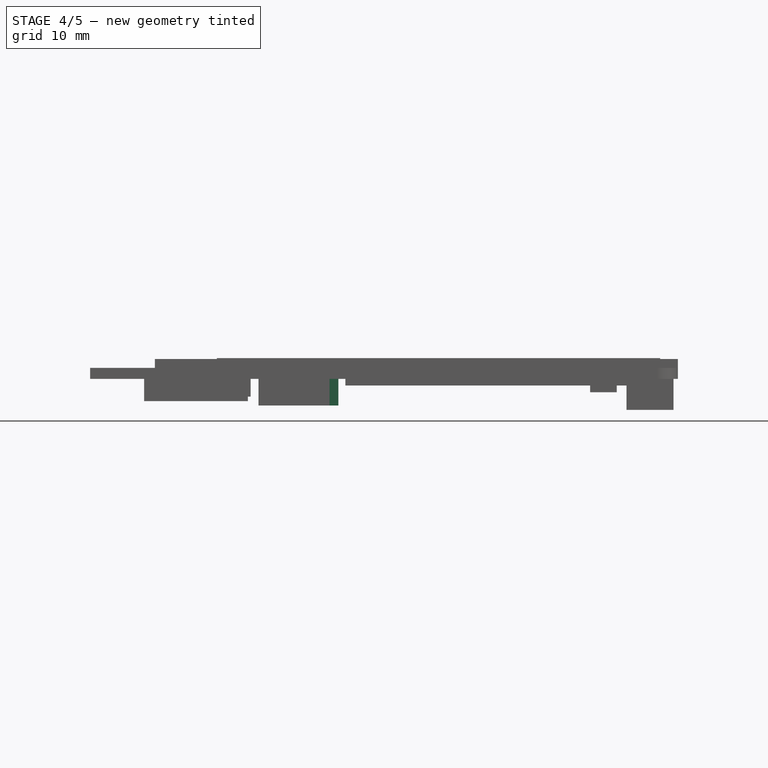
[diagram: stage 4 of 5 — front view after this stage's code; geometry added in this stage tinted green]
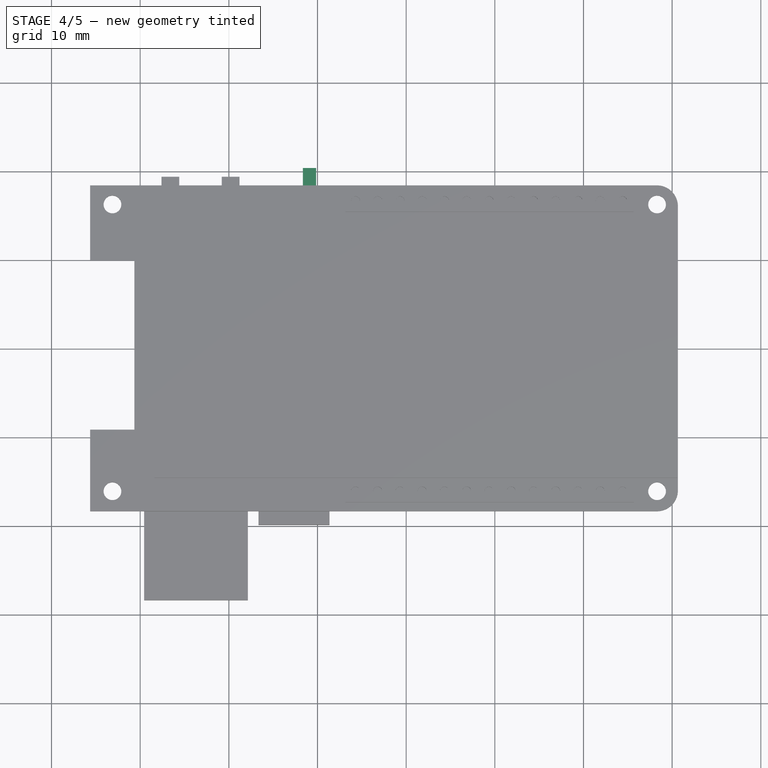
[diagram: stage 4 of 5 — top view after this stage's code; geometry added in this stage tinted green]
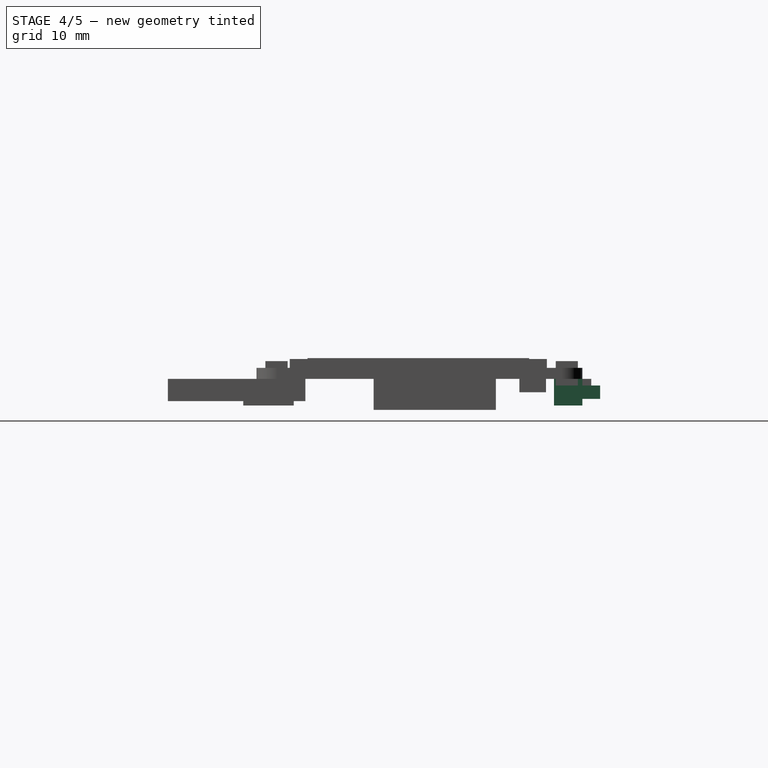
[diagram: stage 4 of 5 — right view after this stage's code; geometry added in this stage tinted green]
FEATURE [Sketcher::SketchObject] Sketch009
  ExternalGeometry = -> [Pad008]
  FullyConstrained = true
  MapMode = 5
  Placement = pos=(0,0,0) rot=(1,0,0;3.14159rad)
  Support = -> [Pad008]
  sketch-geometry (4):
    g0: LineSegment StartX=-16.65 StartY=-15.175 StartZ=0 EndX=-7.65 EndY=-15.175 EndZ=0
    g1: LineSegment StartX=-7.65 StartY=-15.175 StartZ=0 EndX=-7.65 EndY=-18.375 EndZ=0
    g2: LineSegment StartX=-7.65 StartY=-18.375 StartZ=0 EndX=-16.65 EndY=-18.375 EndZ=0
    g3: LineSegment StartX=-16.65 StartY=-18.375 StartZ=0 EndX=-16.65 EndY=-15.175 EndZ=0
  constraints (12):
    c: Coincident(g0,g1)
    c: Coincident(g1,g2)
    c: Coincident(g2,g3)
    c: Coincident(g3,g0)
    c: Horizontal(g0)
    c: Horizontal(g2)
    c: Vertical(g1)
    c: Vertical(g3)
    c: DistanceX(g-3,g2) = 19
    c: DistanceX(g2,g2) = 9
    c: DistanceY(g1,g1) = 3.2
    c: Horizontal(g2,g-3)
FEATURE [PartDesign::Pad] Pad009  label="Switch"
  BaseFeature = -> Pad008
  Direction = (0,0,-1)
  Length = 3
  Length2 = 10
  Profile = -> Sketch009
  ReferenceAxis = -> Sketch009 [N_Axis]
  Type = 0
FEATURE [Sketcher::SketchObject] Sketch010
  ExternalGeometry = -> [Pad009]
  FullyConstrained = true
  MapMode = 5
  Placement = pos=(0,18.375,0) rot=(0,0.707107,0.707107;3.14159rad)
  Support = -> [Pad009]
  sketch-geometry (5):
    g0: LineSegment StartX=14.15 StartY=-0.75 StartZ=0 EndX=10.15 EndY=-0.75 EndZ=0
    g1: LineSegment StartX=10.15 StartY=-0.75 StartZ=0 EndX=10.15 EndY=-2.25 EndZ=0
    g2: LineSegment StartX=10.15 StartY=-2.25 StartZ=0 EndX=14.15 EndY=-2.25 EndZ=0
    g3: LineSegment StartX=14.15 StartY=-2.25 StartZ=0 EndX=14.15 EndY=-0.75 EndZ=0
    g4: GeomPoint X=12.15 Y=-1.5 Z=0
  constraints (12):
    c: Coincident(g0,g1)
    c: Coincident(g1,g2)
    c: Coincident(g2,g3)
    c: Coincident(g3,g0)
    c: Horizontal(g0)
    c: Horizontal(g2)
    c: Vertical(g1)
    c: Vertical(g3)
    c: DistanceX(g2,g2) = 4
    c: DistanceY(g1,g0) = 1.5
    c: Symmetric(g2,g0,g4)
    c: Symmetric(g-3,g-4,g4)
FEATURE [PartDesign::Pocket] Pocket  label="SwitchPocket"
  BaseFeature = -> Pad009
  Direction = (0,-1,2e-16)
  Length = 0.25
  Length2 = 5
  Profile = -> Sketch010
  ReferenceAxis = -> Sketch010 [N_Axis]
  Type = 0
FEATURE [Sketcher::SketchObject] Sketch011
  ExternalGeometry = -> [Pocket]
  FullyConstrained = true
  MapMode = 5
  Placement = pos=(0,18.125,0) rot=(0,0.707107,0.707107;3.14159rad)
  Support = -> [Pocket]
  sketch-geometry (4):
    g0: LineSegment StartX=10.15 StartY=-0.75 StartZ=0 EndX=11.65 EndY=-0.75 EndZ=0
    g1: LineSegment StartX=11.65 StartY=-0.75 StartZ=0 EndX=11.65 EndY=-2.25 EndZ=0
    g2: LineSegment StartX=11.65 StartY=-2.25 StartZ=0 EndX=10.15 EndY=-2.25 EndZ=0
    g3: LineSegment StartX=10.15 StartY=-2.25 StartZ=0 EndX=10.15 EndY=-0.75 EndZ=0
  constraints (10):
    c: Coincident(g0,g1)
    c: Coincident(g1,g2)
    c: Coincident(g2,g3)
    c: Coincident(g3,g0)
    c: Horizontal(g0)
    c: Horizontal(g2)
    c: Vertical(g1)
    c: Coincident(g0,g-3)
    c: Coincident(g2,g-4)
    c: Equal(g3,g0)
FEATURE [PartDesign::Pad] Pad010  label="SwitchStem"
  BaseFeature = -> Pocket
  Direction = (0,1,-2e-16)
  Length = 2.25
  Length2 = 10
  Profile = -> Sketch011
  ReferenceAxis = -> Sketch011 [N_Axis]
  Type = 0
  expr: Length = Pocket.Length + 2 mm
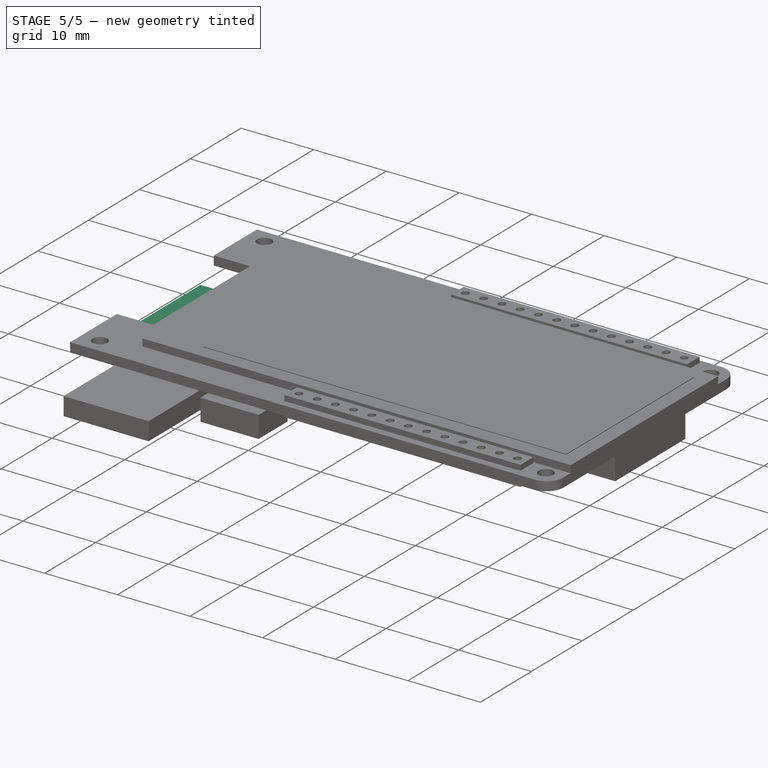
[diagram: stage 5 of 5 — iso view after this stage's code; geometry added in this stage tinted green]
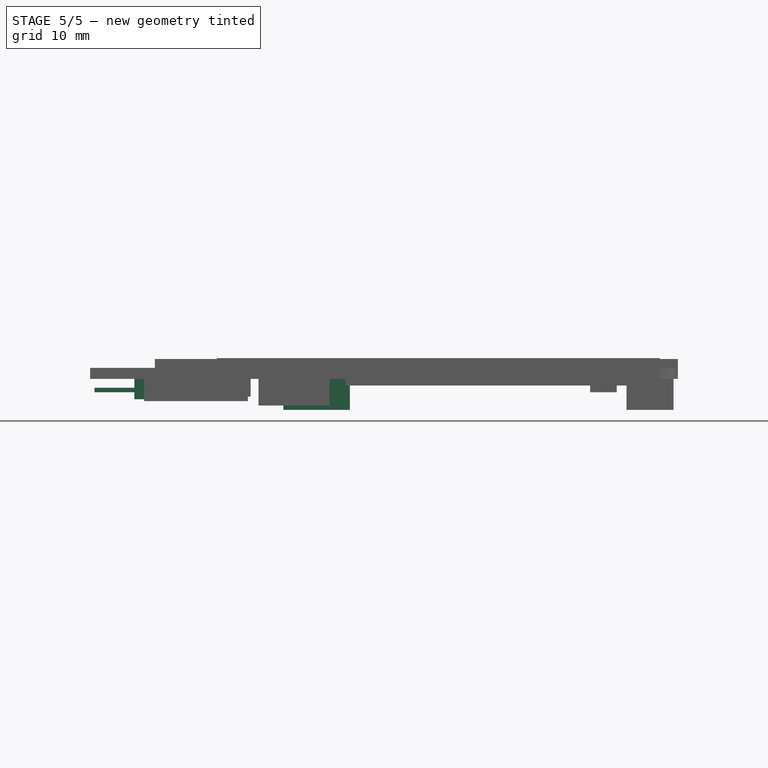
[diagram: stage 5 of 5 — front view after this stage's code; geometry added in this stage tinted green]
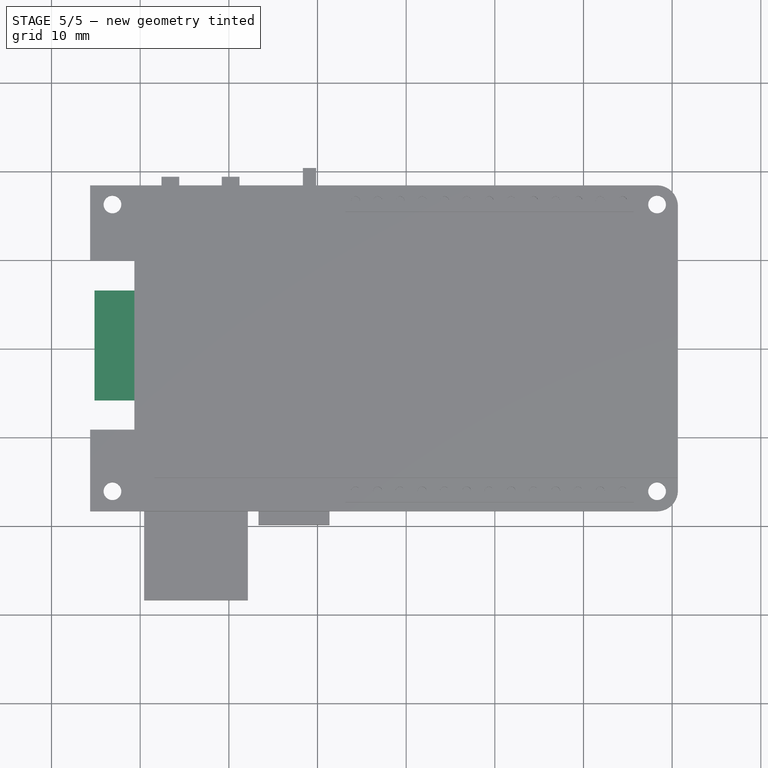
[diagram: stage 5 of 5 — top view after this stage's code; geometry added in this stage tinted green]
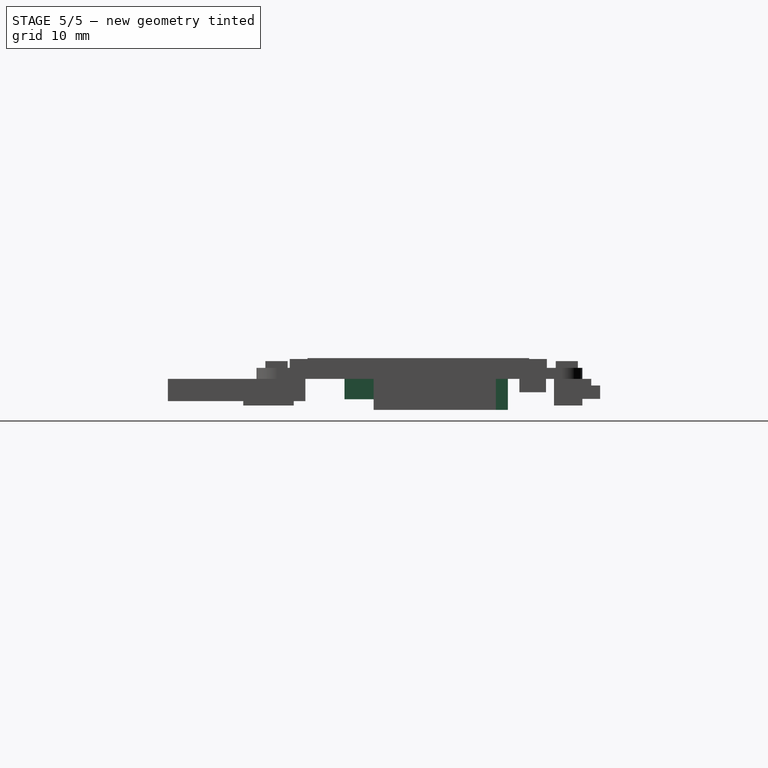
[diagram: stage 5 of 5 — right view after this stage's code; geometry added in this stage tinted green]
FEATURE [Sketcher::SketchObject] Sketch012
  ExternalGeometry = -> [Pad010]
  FullyConstrained = true
  MapMode = 5
  Placement = pos=(0,0,0) rot=(1,0,0;3.14159rad)
  Support = -> [Pad010]
  sketch-geometry (5):
    g0: LineSegment StartX=-30.65 StartY=8.45 StartZ=0 EndX=-26.15 EndY=8.45 EndZ=0
    g1: LineSegment StartX=-26.15 StartY=8.45 StartZ=0 EndX=-26.15 EndY=-9.15 EndZ=0
    g2: LineSegment StartX=-26.15 StartY=-9.15 StartZ=0 EndX=-30.65 EndY=-9.15 EndZ=0
    g3: LineSegment StartX=-30.65 StartY=-9.15 StartZ=0 EndX=-30.65 EndY=8.45 EndZ=0
    g4: GeomPoint X=-30.65 Y=-0.35 Z=0
  constraints (12):
    c: Coincident(g0,g1)
    c: Coincident(g1,g2)
    c: Coincident(g2,g3)
    c: Coincident(g3,g0)
    c: Horizontal(g0)
    c: Horizontal(g2)
    c: Vertical(g1)
    c: Vertical(g3)
    c: DistanceX(g0,g0) = 4.5
    c: DistanceY(g1,g1) = 17.6
    c: Symmetric(g-3,g-3,g4)
    c: Symmetric(g0,g2,g4)
FEATURE [PartDesign::Pad] Pad011  label="ScreenCableConnector"
  BaseFeature = -> Pad010
  Direction = (0,0,-1)
  Length = 2.3
  Length2 = 10
  Profile = -> Sketch012
  ReferenceAxis = -> Sketch012 [N_Axis]
  Type = 0
FEATURE [Sketcher::SketchObject] Sketch013
  ExternalGeometry = -> [Pad011]
  FullyConstrained = true
  MapMode = 5
  Placement = pos=(-30.65,0,0) rot=(0.57735,-0.57735,-0.57735;2.0944rad)
  Support = -> [Pad011]
  sketch-geometry (6):
    g0: LineSegment StartX=-6.55 StartY=-1 StartZ=0 EndX=5.85 EndY=-1 EndZ=0
    g1: LineSegment StartX=5.85 StartY=-1 StartZ=0 EndX=5.85 EndY=-1.5 EndZ=0
    g2: LineSegment StartX=5.85 StartY=-1.5 StartZ=0 EndX=-6.55 EndY=-1.5 EndZ=0
    g3: LineSegment StartX=-6.55 StartY=-1.5 StartZ=0 EndX=-6.55 EndY=-1 EndZ=0
    g4: LineSegment StartX=-9.15 StartY=0 StartZ=0 EndX=-6.55 EndY=-1 EndZ=0
    g5: LineSegment StartX=5.85 StartY=-1 StartZ=0 EndX=8.45 EndY=-1e-16 EndZ=0
  constraints (16):
    c: Coincident(g0,g1)
    c: Coincident(g1,g2)
    c: Coincident(g2,g3)
    c: Coincident(g3,g0)
    c: Horizontal(g0)
    c: Horizontal(g2)
    c: Vertical(g1)
    c: Vertical(g3)
    c: DistanceX(g2,g2) = 12.4
    c: DistanceY(g1,g1) = 0.5
    c: DistanceY(g0,g-3) = 1
    c: Coincident(g4,g-3)
    c: Coincident(g4,g0)
    c: Coincident(g5,g0)
    c: Coincident(g5,g-3)
    c: Equal(g4,g5)
FEATURE [PartDesign::Pad] Pad012  label="ScreenCable"
  BaseFeature = -> Pad011
  Direction = (-1,0,0)
  Length = 4.5
  Length2 = 10
  Profile = -> Sketch013
  ReferenceAxis = -> Sketch013 [N_Axis]
  Type = 0
FEATURE [Sketcher::SketchObject] Sketch014
  ExternalGeometry = -> [Pad012]
  FullyConstrained = true
  MapMode = 5
  Placement = pos=(0,0,0) rot=(1,0,0;3.14159rad)
  Support = -> [Pad012]
  sketch-geometry (8):
    g0: LineSegment StartX=-13.85 StartY=-4.975 StartZ=0 EndX=-12.6 EndY=-4.975 EndZ=0
    g1: LineSegment StartX=-6.35 StartY=-4.975 StartZ=0 EndX=-6.35 EndY=-9.975 EndZ=0
    g2: LineSegment StartX=-6.35 StartY=-9.975 StartZ=0 EndX=-13.85 EndY=-9.975 EndZ=0
    g3: LineSegment StartX=-13.85 StartY=-9.975 StartZ=0 EndX=-13.85 EndY=-4.975 EndZ=0
    g4: LineSegment StartX=-7.6 StartY=-4.975 StartZ=0 EndX=-7.6 EndY=-6.975 EndZ=0
    g5: LineSegment StartX=-7.6 StartY=-6.975 StartZ=0 EndX=-12.6 EndY=-6.975 EndZ=0
    g6: LineSegment StartX=-12.6 StartY=-6.975 StartZ=0 EndX=-12.6 EndY=-4.975 EndZ=0
    g7: LineSegment StartX=-7.6 StartY=-4.975 StartZ=0 EndX=-6.35 EndY=-4.975 EndZ=0
  constraints (24):
    c: Coincident(g7,g1)
    c: Coincident(g1,g2)
    c: Coincident(g2,g3)
    c: Coincident(g3,g0)
    c: Horizontal(g0)
    c: Horizontal(g2)
    c: Vertical(g1)
    c: Vertical(g3)
    c: DistanceY(g-3,g0) = 13.4
    c: DistanceY(g3,g3) = 5
    c: DistanceX(g0,g7) = 7.5
    c: DistanceX(g-3,g0) = 21.8
    c: Coincident(g4,g5)
    c: Coincident(g5,g6)
    c: Horizontal(g5)
    c: Vertical(g4)
    c: Vertical(g6)
    c: Equal(g0,g7)
    c: Coincident(g0,g6)
    c: Coincident(g4,g7)
    c: DistanceY(g6,g6) = 2
    c: Horizontal(g0,g4)
    c: DistanceX(g5,g5) = 5
    c: Horizontal(g7)
FEATURE [PartDesign::Pad] Pad013  label="BatConnector"
  BaseFeature = -> Pad012
  Direction = (0,0,-1)
  Length = 3.5
  Length2 = 10
  Profile = -> Sketch014
  ReferenceAxis = -> Sketch014 [N_Axis]
  Type = 0
FEATURE [PartDesign::Body] Body
  Group = -> [Sketch,Pad,Sketch001,Pad001,Sketch002,Pad002,Sketch003,Pad003,Sketch004,Pad004,Sketch005,Pad005,Sketch006,Pad006,Sketch007,Pad007,Sketch008,Pad008,Sketch009,Pad009,Sketch010,Pocket,Sketch011,Pad010,Sketch012,Pad011,Sketch013,Pad012,Sketch014,Pad013]
  Origin = -> Origin
  Tip = -> Pad013
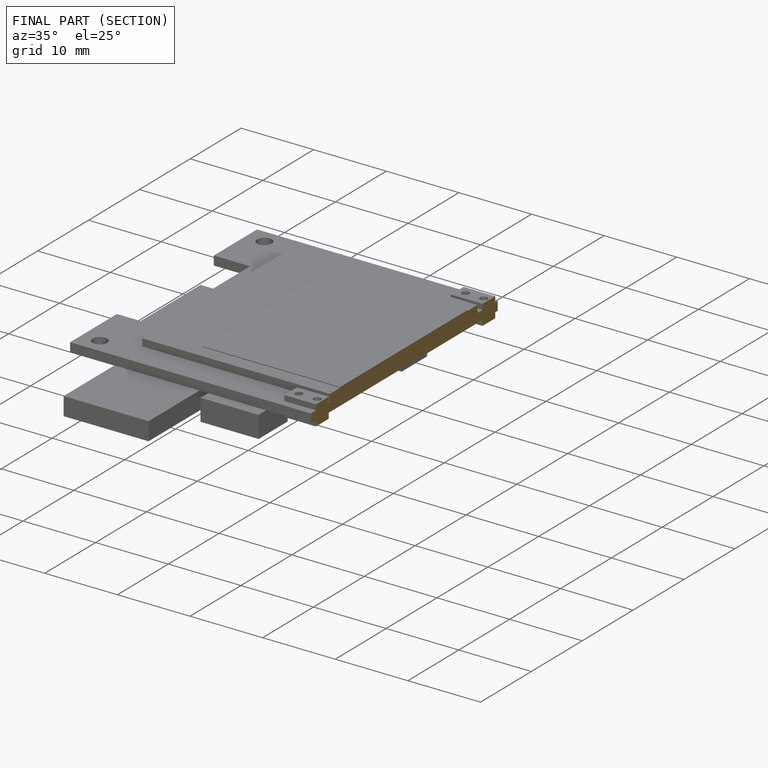
[diagram: finished part — half-section view (interior)]
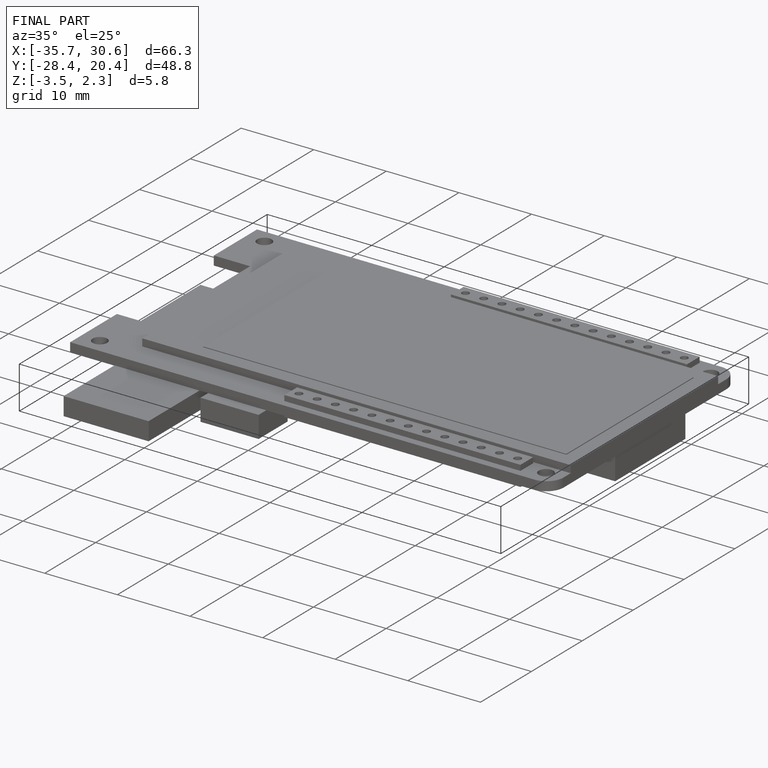
[diagram: finished part — iso view with bounding-box wireframe]
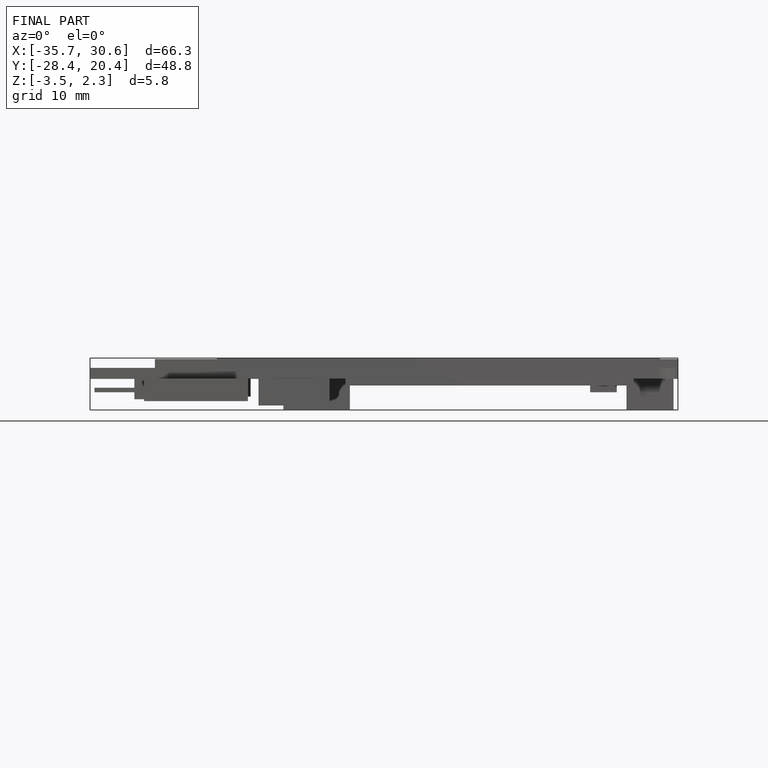
[diagram: finished part — front view with bounding-box wireframe]
